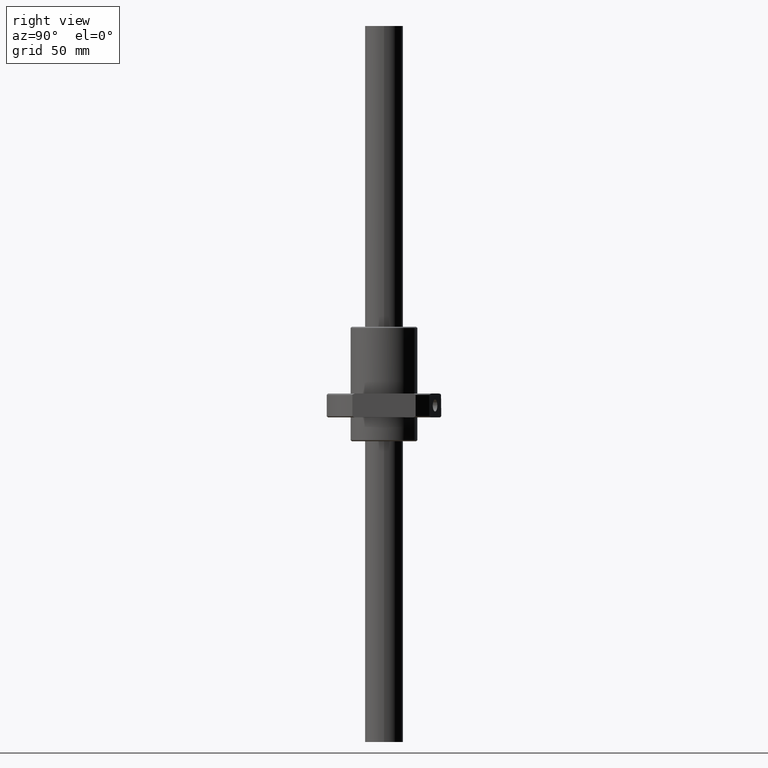
[diagram: clean part render]
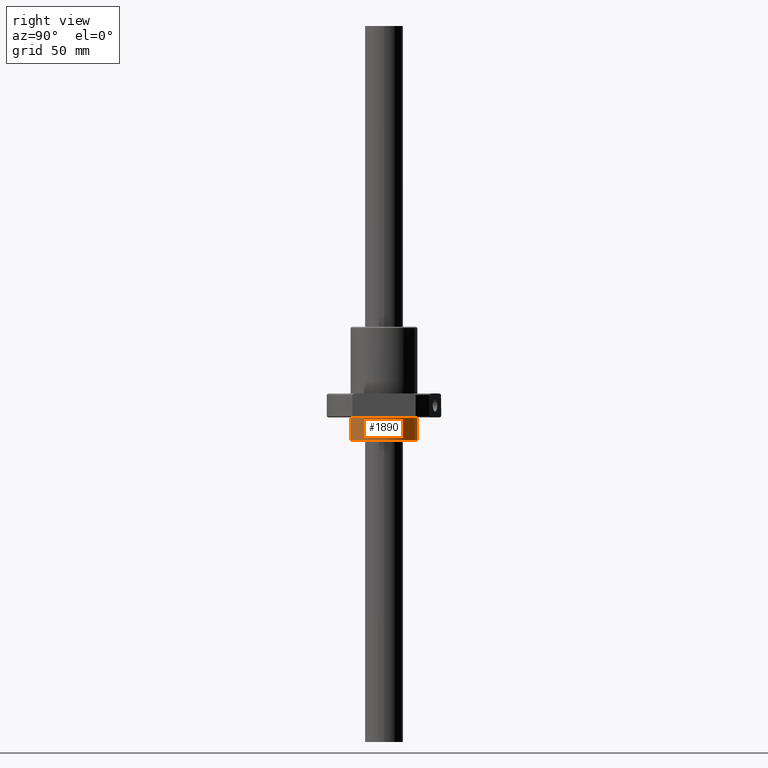
[diagram: same view with one face highlighted and labeled with its STEP entity id]
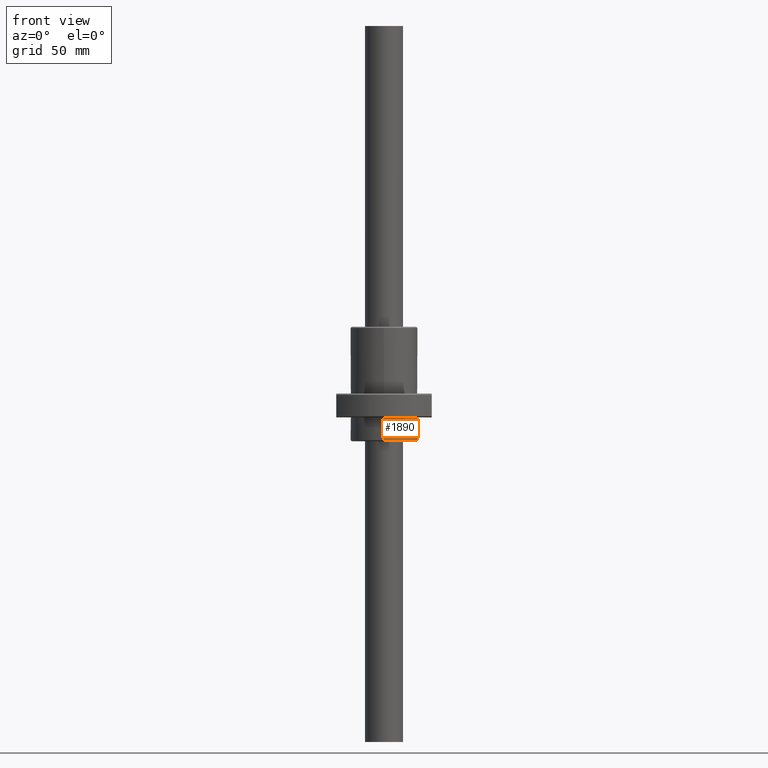
[diagram: same view with one face highlighted and labeled with its STEP entity id]
A machine part, right view. The second image highlights one B-rep face of the part: STEP entity #1890.
A second angle (front view) of the same face is appended — the face is thin or edge-on in the first view.
In plain terms, the highlighted cylindrical surface (edge-blend (fillet) strip) has radius 14 mm, axis along (0, -0, -1).
Its self-contained STEP definition (entity closure, byte-faithful):
#5 = VERTEX_POINT ( 'NONE', #1674 ) ;
#15 = CARTESIAN_POINT ( 'NONE',  ( 1.714505518806294600E-015, 14.00000000000000000, -9.999999999999998200 ) ) ;
#24 = LINE ( 'NONE', #1022, #159 ) ;
#159 = VECTOR ( 'NONE', #231, 1000.000000000000000 ) ;
#170 = AXIS2_PLACEMENT_3D ( 'NONE', #598, #410, #206 ) ;
#185 = DIRECTION ( 'NONE',  ( 0.0000000000000000000, -1.000000000000000000, -1.239088197126290800E-016 ) ) ;
#206 = DIRECTION ( 'NONE',  ( 1.000000000000000000, 0.0000000000000000000, 0.0000000000000000000 ) ) ;
#231 = DIRECTION ( 'NONE',  ( 0.0000000000000000000, -6.195440985631455300E-017, 1.000000000000000000 ) ) ;
#242 = CARTESIAN_POINT ( 'NONE',  ( 1.714505518806294600E-015, 14.00000000000000000, -9.999999999999998200 ) ) ;
#304 = LINE ( 'NONE', #242, #399 ) ;
#308 = AXIS2_PLACEMENT_3D ( 'NONE', #1377, #1335, #913 ) ;
#376 = FACE_OUTER_BOUND ( 'NONE', #1077, .T. ) ;
#399 = VECTOR ( 'NONE', #1665, 1000.000000000000000 ) ;
#410 = DIRECTION ( 'NONE',  ( 0.0000000000000000000, 0.0000000000000000000, 1.000000000000000000 ) ) ;
#413 = CIRCLE ( 'NONE', #170, 14.00000000000000000 ) ;
#472 = ORIENTED_EDGE ( 'NONE', *, *, #628, .T. ) ;
#598 = CARTESIAN_POINT ( 'NONE',  ( 0.0000000000000000000, 0.0000000000000000000, -0.5000000000000000000 ) ) ;
#628 = EDGE_CURVE ( 'NONE', #1311, #1567, #1459, .T. ) ;
#644 = VERTEX_POINT ( 'NONE', #684 ) ;
#684 = CARTESIAN_POINT ( 'NONE',  ( -14.00000000000000000, 0.0000000000000000000, -0.5000000000000000000 ) ) ;
#710 = CIRCLE ( 'NONE', #1009, 14.00000000000000000 ) ;
#747 = CARTESIAN_POINT ( 'NONE',  ( 0.0000000000000000000, -14.00000000000000000, -10.00000000000000200 ) ) ;
#861 = ORIENTED_EDGE ( 'NONE', *, *, #1710, .F. ) ;
#891 = CYLINDRICAL_SURFACE ( 'NONE', #1458, 14.00000000000000000 ) ;
#913 = DIRECTION ( 'NONE',  ( 0.0000000000000000000, -1.000000000000000000, -1.239088197126290800E-016 ) ) ;
#1009 = AXIS2_PLACEMENT_3D ( 'NONE', #1342, #1538, #1938 ) ;
#1022 = CARTESIAN_POINT ( 'NONE',  ( 0.0000000000000000000, -14.00000000000000000, -10.00000000000000200 ) ) ;
#1071 = CARTESIAN_POINT ( 'NONE',  ( 1.714505518806294600E-015, 14.00000000000000000, -0.5000000000000000000 ) ) ;
#1077 = EDGE_LOOP ( 'NONE', ( #861, #472, #1289, #1669, #1635 ) ) ;
#1289 = ORIENTED_EDGE ( 'NONE', *, *, #1417, .T. ) ;
#1311 = VERTEX_POINT ( 'NONE', #15 ) ;
#1335 = DIRECTION ( 'NONE',  ( 0.0000000000000000000, -6.195440985631455300E-017, 1.000000000000000000 ) ) ;
#1342 = CARTESIAN_POINT ( 'NONE',  ( 0.0000000000000000000, 0.0000000000000000000, -0.5000000000000000000 ) ) ;
#1377 = CARTESIAN_POINT ( 'NONE',  ( 0.0000000000000000000, -2.204323854208500500E-041, -10.00000000000000000 ) ) ;
#1417 = EDGE_CURVE ( 'NONE', #1567, #5, #24, .T. ) ;
#1458 = AXIS2_PLACEMENT_3D ( 'NONE', #1748, #1941, #185 ) ;
#1459 = CIRCLE ( 'NONE', #308, 14.00000000000000000 ) ;
#1470 = VERTEX_POINT ( 'NONE', #1071 ) ;
#1536 = EDGE_CURVE ( 'NONE', #1470, #644, #710, .T. ) ;
#1538 = DIRECTION ( 'NONE',  ( 0.0000000000000000000, 0.0000000000000000000, 1.000000000000000000 ) ) ;
#1567 = VERTEX_POINT ( 'NONE', #747 ) ;
#1577 = EDGE_CURVE ( 'NONE', #644, #5, #413, .T. ) ;
#1635 = ORIENTED_EDGE ( 'NONE', *, *, #1536, .F. ) ;
#1665 = DIRECTION ( 'NONE',  ( 0.0000000000000000000, -6.195440985631455300E-017, 1.000000000000000000 ) ) ;
#1669 = ORIENTED_EDGE ( 'NONE', *, *, #1577, .F. ) ;
#1674 = CARTESIAN_POINT ( 'NONE',  ( 0.0000000000000000000, -14.00000000000000000, -0.5000000000000000000 ) ) ;
#1710 = EDGE_CURVE ( 'NONE', #1311, #1470, #304, .T. ) ;
#1748 = CARTESIAN_POINT ( 'NONE',  ( 0.0000000000000000000, 0.0000000000000000000, -10.00000000000000000 ) ) ;
#1890 = ADVANCED_FACE ( 'NONE', ( #376 ), #891, .T. ) ;
#1938 = DIRECTION ( 'NONE',  ( 1.000000000000000000, 0.0000000000000000000, 0.0000000000000000000 ) ) ;
#1941 = DIRECTION ( 'NONE',  ( 0.0000000000000000000, -6.195440985631455300E-017, 1.000000000000000000 ) ) ;